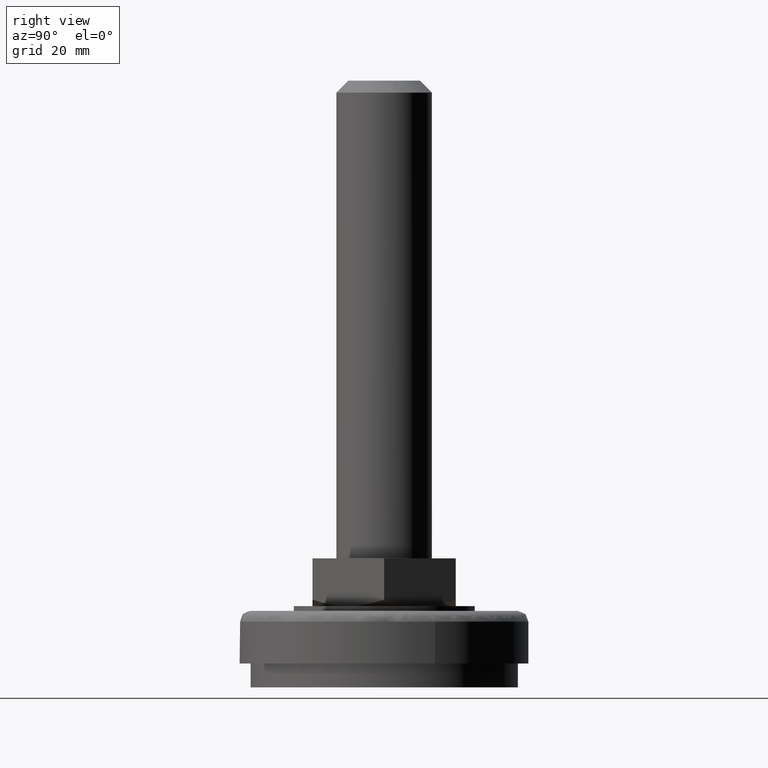
[diagram: clean part render]
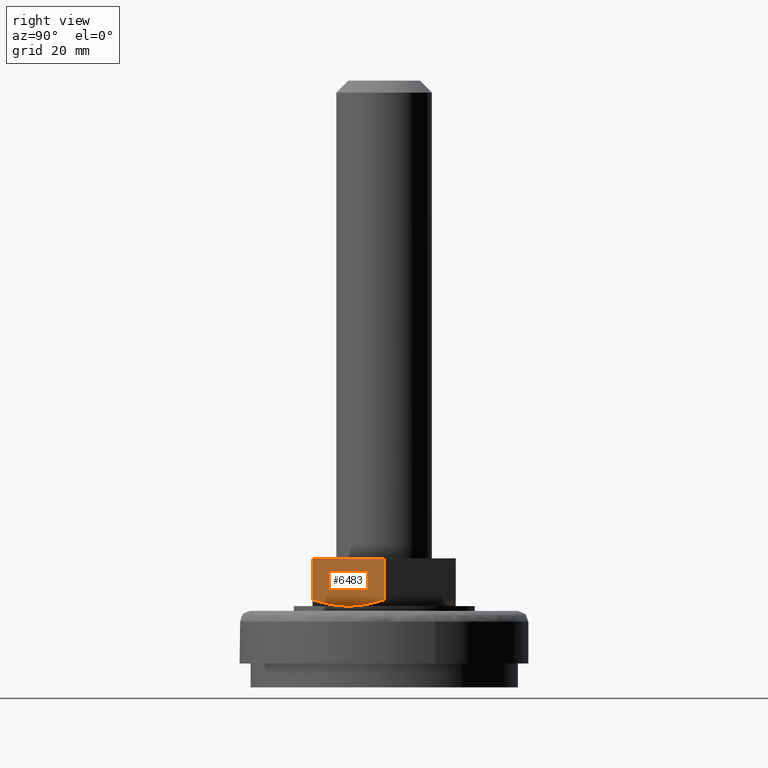
[diagram: same view with one face highlighted and labeled with its STEP entity id]
A machine part, right view. The second image highlights one B-rep face of the part: STEP entity #6483.
In plain terms, the highlighted face is a freeform B-spline surface patch.
Its self-contained STEP definition (entity closure, byte-faithful):
#4832=CARTESIAN_POINT('',(17.300000000000001,-5.941482E-017,18.339745951230949));
#4833=VERTEX_POINT('',#4832);
#4845=CARTESIAN_POINT('',(8.639746000000001,-15.0,18.345671394023451));
#4846=VERTEX_POINT('',#4845);
#4847=CARTESIAN_POINT('',(8.639746000000001,-15.0,18.345671394023451));
#4848=CARTESIAN_POINT('',(9.346698966340240,-13.775521538386331,17.936786780818132));
#4849=CARTESIAN_POINT('',(10.058822484335931,-12.542087418563140,17.599588998315021));
#4850=CARTESIAN_POINT('',(11.138194585494050,-10.672560090915260,17.248891436497171));
#4851=CARTESIAN_POINT('',(11.499854347525430,-10.046147005286270,17.157905752206489));
#4852=CARTESIAN_POINT('',(12.227406586928570,-8.785989555972769,17.034618634017669));
#4853=CARTESIAN_POINT('',(12.593302747371361,-8.152238813022052,17.002368263856638));
#4854=CARTESIAN_POINT('',(13.053511370126801,-7.355134092845084,17.001408450569720));
#4855=CARTESIAN_POINT('',(13.145694399844620,-7.195468401080463,17.003175605670020));
#4856=CARTESIAN_POINT('',(13.330345165331980,-6.875643892202267,17.010657207356971));
#4857=CARTESIAN_POINT('',(13.422653180681939,-6.715761718971628,17.016368104078960));
#4858=CARTESIAN_POINT('',(13.698904168786310,-6.237280969842822,17.039291775102338));
#4859=CARTESIAN_POINT('',(13.882431816609071,-5.919401757831105,17.062310992847951));
#4860=CARTESIAN_POINT('',(14.431178601310791,-4.968944442084267,17.153576613393700));
#4861=CARTESIAN_POINT('',(14.794557260691599,-4.339554138900083,17.244083217684508));
#4862=CARTESIAN_POINT('',(15.878224604632830,-2.462587232488510,17.593839847269571));
#4863=CARTESIAN_POINT('',(16.592069824133230,-1.226171038170647,17.931022273626709));
#4864=CARTESIAN_POINT('',(17.300000000000001,-5.941482E-017,18.339745951230949));
#4865=B_SPLINE_CURVE_WITH_KNOTS('',3,(#4847,#4848,#4849,#4850,#4851,#4852,#4853,#4854,#4855,#4856,#4857,#4858,#4859,#4860,#4861,#4862,#4863,#4864),.UNSPECIFIED.,.F.,.U.,(4,2,2,2,2,2,2,2,4),(0.0,0.250000000000000,0.374999999999999,0.499999999999999,0.531249999999999,0.562499999999999,0.624999999999999,0.749999999999999,1.0),.UNSPECIFIED.);
#4866=EDGE_CURVE('',#4846,#4833,#4865,.T.);
#6387=CARTESIAN_POINT('',(8.639746000000001,-15.0,27.0));
#6388=VERTEX_POINT('',#6387);
#6394=CARTESIAN_POINT('',(17.300000000000001,0.0,27.0));
#6395=VERTEX_POINT('',#6394);
#6396=CARTESIAN_POINT('',(17.300000000000001,0.0,27.0));
#6397=CARTESIAN_POINT('',(8.639746000000001,-15.0,27.0));
#6398=QUASI_UNIFORM_CURVE('',1,(#6396,#6397),.UNSPECIFIED.,.F.,.U.);
#6399=EDGE_CURVE('',#6395,#6388,#6398,.T.);
#6459=CARTESIAN_POINT('',(8.639746000000001,-15.0,18.345671394023451));
#6460=CARTESIAN_POINT('',(8.639746000000001,-15.0,27.0));
#6461=QUASI_UNIFORM_CURVE('',1,(#6459,#6460),.UNSPECIFIED.,.F.,.U.);
#6462=EDGE_CURVE('',#4846,#6388,#6461,.T.);
#6468=CARTESIAN_POINT('',(17.732579507922210,0.749249689308553,16.502168148292949));
#6469=CARTESIAN_POINT('',(8.207166104934267,-15.749250359860810,16.502168148292949));
#6470=CARTESIAN_POINT('',(17.732579507922210,0.749249689308553,27.499420889744940));
#6471=CARTESIAN_POINT('',(8.207166104934267,-15.749250359860810,27.499420889744940));
#6472=B_SPLINE_SURFACE_WITH_KNOTS('',1,1,((#6468,#6470),(#6469,#6471)),.UNSPECIFIED.,.F.,.F.,.U.,(2,2),(2,2),(0.0,19.050826868413449),(0.0,10.997252741451989),.UNSPECIFIED.);
#6473=ORIENTED_EDGE('',*,*,#6462,.F.);
#6474=ORIENTED_EDGE('',*,*,#4866,.T.);
#6475=CARTESIAN_POINT('',(17.300000000000001,-5.941482E-017,18.339745951230949));
#6476=CARTESIAN_POINT('',(17.300000000000001,0.0,27.0));
#6477=QUASI_UNIFORM_CURVE('',1,(#6475,#6476),.UNSPECIFIED.,.F.,.U.);
#6478=EDGE_CURVE('',#4833,#6395,#6477,.T.);
#6479=ORIENTED_EDGE('',*,*,#6478,.T.);
#6480=ORIENTED_EDGE('',*,*,#6399,.T.);
#6481=EDGE_LOOP('',(#6473,#6474,#6479,#6480));
#6482=FACE_OUTER_BOUND('',#6481,.T.);
#6483=ADVANCED_FACE('',(#6482),#6472,.F.);